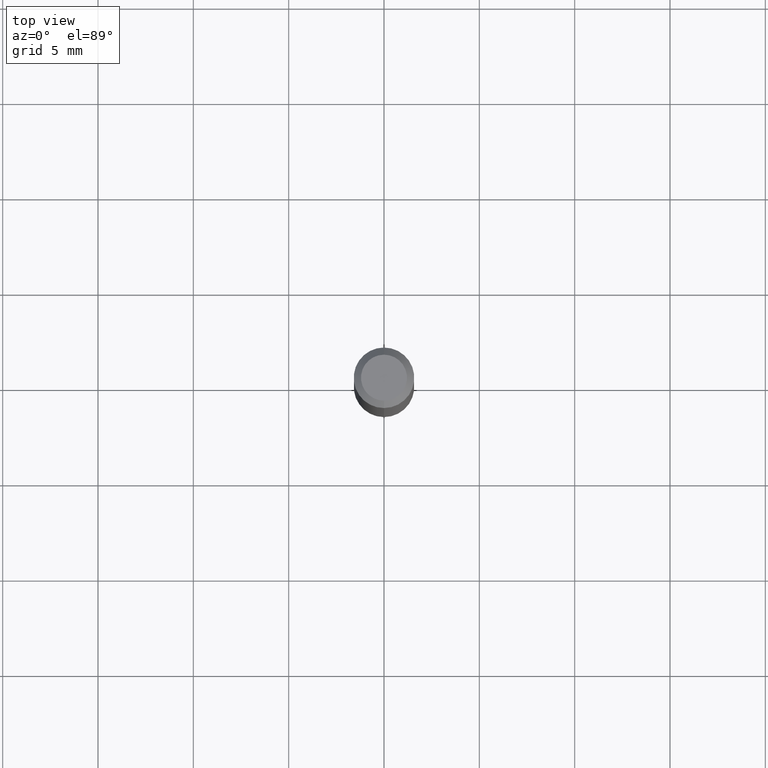
[diagram: clean part render]
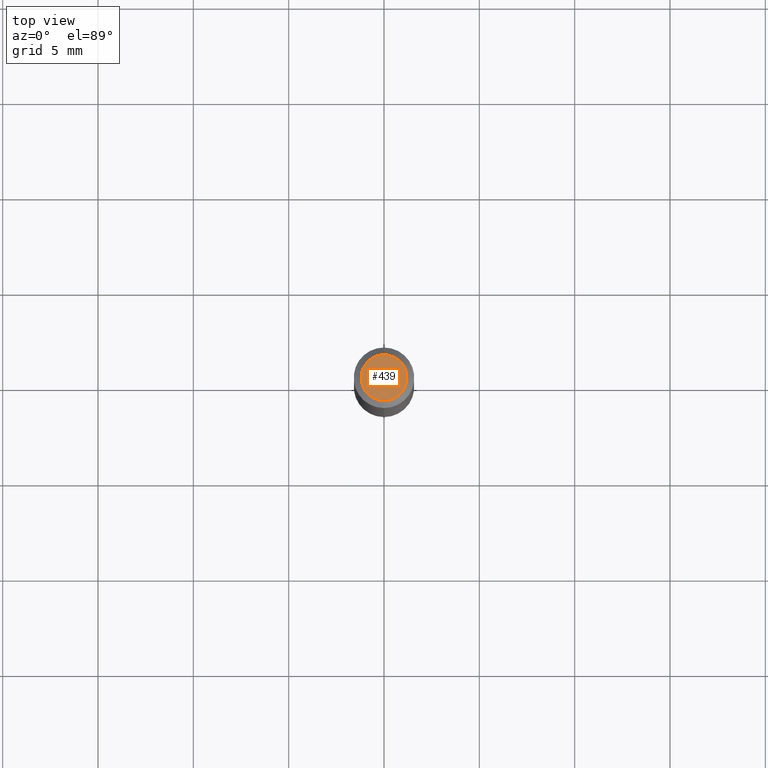
[diagram: same view with one face highlighted and labeled with its STEP entity id]
A machine part, top view. The second image highlights one B-rep face of the part: STEP entity #439.
In plain terms, the highlighted planar face has unit normal (0, -0, -1).
Its self-contained STEP definition (entity closure, byte-faithful):
#33 = EDGE_CURVE ( 'NONE', #511, #313, #285, .T. ) ;
#34 = DIRECTION ( 'NONE',  ( 6.982962677686265922E-15, 1.000000000000000000, -3.491940666139060694E-15 ) ) ;
#37 = AXIS2_PLACEMENT_3D ( 'NONE', #118, #384, #34 ) ;
#72 = PLANE ( 'NONE',  #37 ) ;
#84 = EDGE_LOOP ( 'NONE', ( #152, #263 ) ) ;
#118 = CARTESIAN_POINT ( 'NONE',  ( 3.316907271900976096E-16, 0.04749999999999999362, -1.702864324142429345E-16 ) ) ;
#152 = ORIENTED_EDGE ( 'NONE', *, *, #408, .T. ) ;
#163 = AXIS2_PLACEMENT_3D ( 'NONE', #204, #280, #436 ) ;
#169 = DIRECTION ( 'NONE',  ( -2.445148059648714686E-29, 3.491940666139061088E-15, 1.000000000000000000 ) ) ;
#195 = AXIS2_PLACEMENT_3D ( 'NONE', #472, #169, #314 ) ;
#204 = CARTESIAN_POINT ( 'NONE',  ( 2.161144490363163213E-46, -3.086352297367912300E-32, -8.838501545275121321E-18 ) ) ;
#223 = CIRCLE ( 'NONE', #163, 0.04749999999999999362 ) ;
#263 = ORIENTED_EDGE ( 'NONE', *, *, #33, .T. ) ;
#270 = CARTESIAN_POINT ( 'NONE',  ( 3.840629472727447874E-16, 0.04749999999999999362, -1.747056831868805136E-16 ) ) ;
#280 = DIRECTION ( 'NONE',  ( -2.445148059648714686E-29, 3.491940666139061088E-15, 1.000000000000000000 ) ) ;
#285 = CIRCLE ( 'NONE', #195, 0.04749999999999999362 ) ;
#313 = VERTEX_POINT ( 'NONE', #270 ) ;
#314 = DIRECTION ( 'NONE',  ( -6.982962677686266711E-15, -1.000000000000000000, 3.491940666139061088E-15 ) ) ;
#320 = CARTESIAN_POINT ( 'NONE',  ( -3.773273898774340269E-16, -0.04749999999999999362, 1.570286800963302463E-16 ) ) ;
#384 = DIRECTION ( 'NONE',  ( 2.445148059648714406E-29, -3.491940666139060694E-15, -1.000000000000000000 ) ) ;
#408 = EDGE_CURVE ( 'NONE', #313, #511, #223, .T. ) ;
#436 = DIRECTION ( 'NONE',  ( -6.982962677686266711E-15, -1.000000000000000000, 3.491940666139061088E-15 ) ) ;
#439 = ADVANCED_FACE ( 'NONE', ( #476 ), #72, .F. ) ;
#472 = CARTESIAN_POINT ( 'NONE',  ( 2.161144490363163213E-46, -3.086352297367912300E-32, -8.838501545275121321E-18 ) ) ;
#476 = FACE_OUTER_BOUND ( 'NONE', #84, .T. ) ;
#511 = VERTEX_POINT ( 'NONE', #320 ) ;